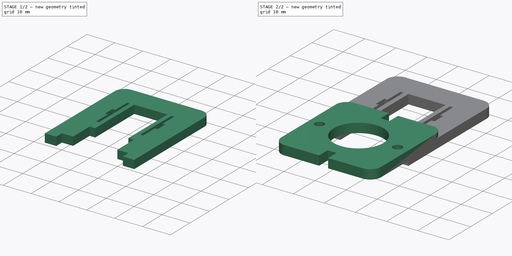
[diagram: build sequence overview — one tinted view per stage of 2, left to right]
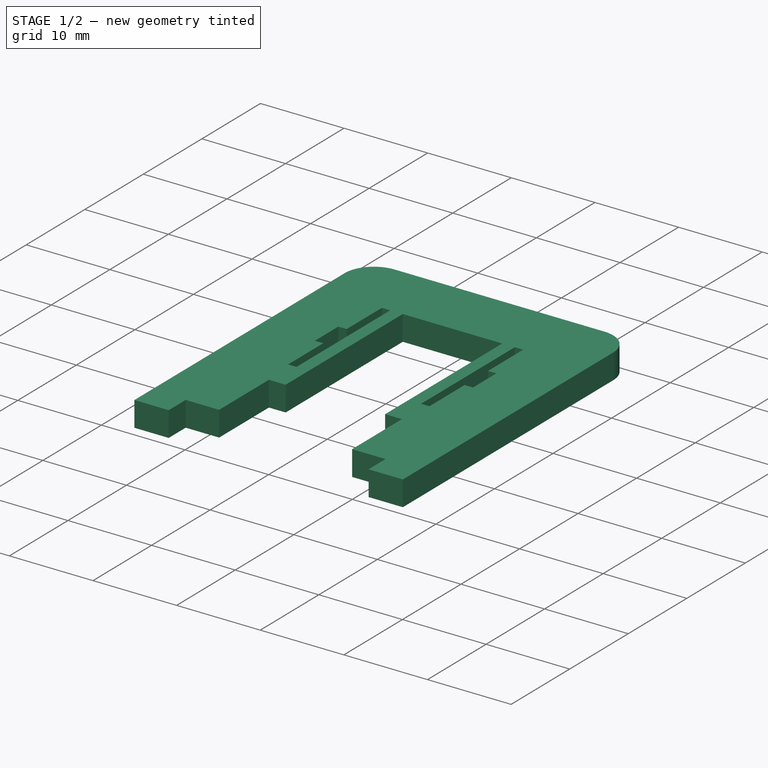
[diagram: stage 1 of 2 — iso view after this stage's code; geometry added in this stage tinted green]
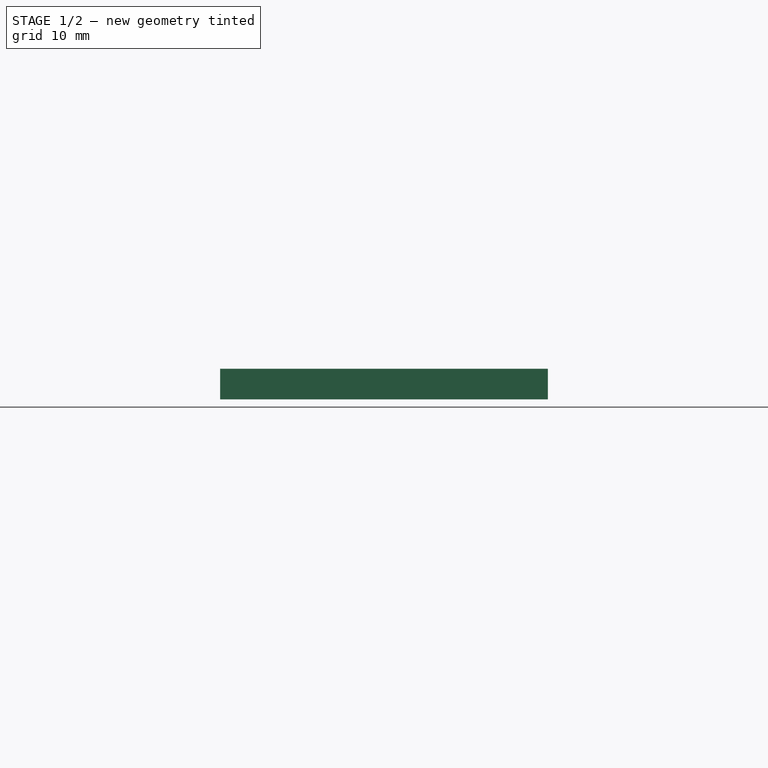
[diagram: stage 1 of 2 — front view after this stage's code; geometry added in this stage tinted green]
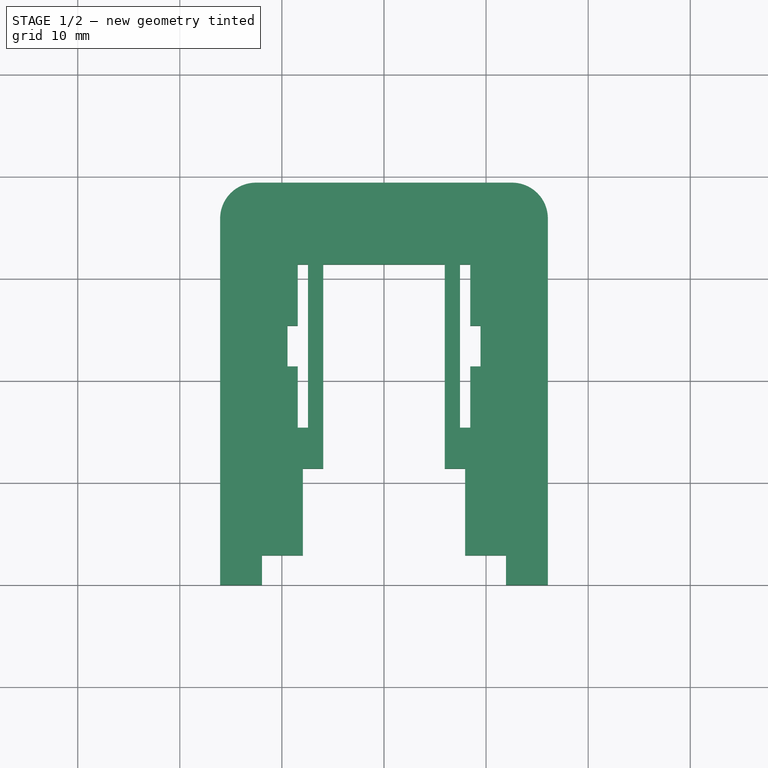
[diagram: stage 1 of 2 — top view after this stage's code; geometry added in this stage tinted green]
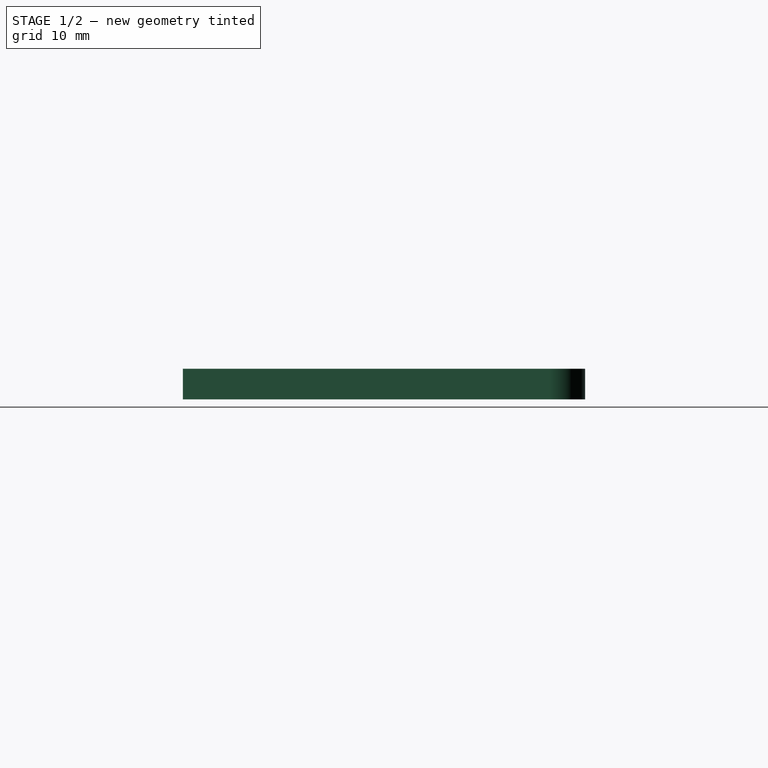
[diagram: stage 1 of 2 — right view after this stage's code; geometry added in this stage tinted green]
FCSTD DOCUMENT  (FreeCAD 0.19R24291 (Git))
Label: ri_motor-mount
License: All rights reserved
LicenseURL: http://en.wikipedia.org/wiki/All_rights_reserved
objects: Sketcher::SketchObject×2, PartDesign::Pad×2, PartDesign::Body×2, App::Part×2, Spreadsheet::Sheet×1
note: 8 computed .brp shape members not serialized (recipe doc carries the construction recipe); baked Part::Feature solids carry a one-line shape summary decoded from their .brp

FEATURE [PartDesign::Body] Body
  Group = -> [Sketch,Pad]
  Origin = -> Origin001
  Tip = -> Pad
FEATURE [App::Part] Part  label="Baseplate"
  Group = -> [Body]
  Origin = -> Origin
FEATURE [Sketcher::SketchObject] Sketch002
  FullyConstrained = true
  MapMode = 5
  Support = -> [XY_Plane005]
  expr: Constraints[38] = 31.5 - Spreadsheet.Offset
  expr: Constraints[44] = 32 + Spreadsheet.Offset
  expr: Constraints[33] = 12 - Spreadsheet.Offset
  expr: Constraints[34] = 16 - Spreadsheet.Offset
  expr: Constraints[36] = 3 - Spreadsheet.Offset
  expr: Constraints[37] = 11.5 - Spreadsheet.Offset
  expr: Constraints[35] = 4 + Spreadsheet.Offset
  sketch-geometry (34):
    g0: LineSegment StartX=-16.05 StartY=0 StartZ=0 EndX=-11.95 EndY=0 EndZ=0
    g1: LineSegment StartX=16.05 StartY=0 StartZ=0 EndX=16.05 EndY=35.9 EndZ=0
    g2: LineSegment StartX=12.55 StartY=39.4 StartZ=0 EndX=-12.55 EndY=39.4 EndZ=0
    g3: LineSegment StartX=-16.05 StartY=35.9 StartZ=0 EndX=-16.05 EndY=0 EndZ=0
    g4: LineSegment StartX=11.95 StartY=0 StartZ=0 EndX=11.95 EndY=2.9 EndZ=0
    g5: LineSegment StartX=11.95 StartY=2.9 StartZ=0 EndX=7.95 EndY=2.9 EndZ=0
    g6: LineSegment StartX=-11.95 StartY=2.9 StartZ=0 EndX=-11.95 EndY=0 EndZ=0
    g7: LineSegment StartX=11.95 StartY=0 StartZ=0 EndX=16.05 EndY=0 EndZ=0
    g8: LineSegment StartX=7.95 StartY=2.9 StartZ=0 EndX=7.95 EndY=11.4 EndZ=0
    g9: LineSegment StartX=7.95 StartY=11.4 StartZ=0 EndX=5.95 EndY=11.4 EndZ=0
    g10: LineSegment StartX=-7.95 StartY=11.4 StartZ=0 EndX=-7.95 EndY=2.9 EndZ=0
    g11: LineSegment StartX=5.95 StartY=11.4 StartZ=0 EndX=5.95 EndY=31.4 EndZ=0
    g12: LineSegment StartX=5.95 StartY=31.4 StartZ=0 EndX=-5.95 EndY=31.4 EndZ=0
    g13: LineSegment StartX=-5.95 StartY=31.4 StartZ=0 EndX=-5.95 EndY=11.4 EndZ=0
    g14: LineSegment StartX=-5.95 StartY=11.4 StartZ=0 EndX=-7.95 EndY=11.4 EndZ=0
    g15: LineSegment StartX=-7.95 StartY=2.9 StartZ=0 EndX=-11.95 EndY=2.9 EndZ=0
    g16: ArcOfCircle CenterX=12.55 CenterY=35.9 CenterZ=0 NormalX=0 NormalY=0 NormalZ=1 AngleXU=0 Radius=3.5 StartAngle=3e-16 EndAngle=1.5708
    g17: ArcOfCircle CenterX=-12.55 CenterY=35.9 CenterZ=0 NormalX=0 NormalY=0 NormalZ=1 AngleXU=0 Radius=3.5 StartAngle=1.5708 EndAngle=3.14159
    g18: LineSegment StartX=-8.45 StartY=31.4 StartZ=0 EndX=-7.45 EndY=31.4 EndZ=0
    g19: LineSegment StartX=-7.45 StartY=31.4 StartZ=0 EndX=-7.45 EndY=15.4 EndZ=0
    g20: LineSegment StartX=-7.45 StartY=15.4 StartZ=0 EndX=-8.45 EndY=15.4 EndZ=0
    g21: LineSegment StartX=-8.45 StartY=15.4 StartZ=0 EndX=-8.45 EndY=21.4 EndZ=0
    g22: LineSegment StartX=7.45 StartY=31.4 StartZ=0 EndX=8.45 EndY=31.4 EndZ=0
    g23: LineSegment StartX=8.45 StartY=31.4 StartZ=0 EndX=8.45 EndY=25.4 EndZ=0
    g24: LineSegment StartX=8.45 StartY=15.4 StartZ=0 EndX=7.45 EndY=15.4 EndZ=0
    g25: LineSegment StartX=7.45 StartY=15.4 StartZ=0 EndX=7.45 EndY=31.4 EndZ=0
    g26: LineSegment StartX=-9.45 StartY=25.4 StartZ=0 EndX=-8.45 EndY=25.4 EndZ=0
    g27: LineSegment StartX=-8.45 StartY=21.4 StartZ=0 EndX=-9.45 EndY=21.4 EndZ=0
    g28: LineSegment StartX=-9.45 StartY=21.4 StartZ=0 EndX=-9.45 EndY=25.4 EndZ=0
    g29: LineSegment StartX=8.45 StartY=25.4 StartZ=0 EndX=9.45 EndY=25.4 EndZ=0
    g30: LineSegment StartX=9.45 StartY=25.4 StartZ=0 EndX=9.45 EndY=21.4 EndZ=0
    g31: LineSegment StartX=9.45 StartY=21.4 StartZ=0 EndX=8.45 EndY=21.4 EndZ=0
    g32: LineSegment StartX=-8.45 StartY=25.4 StartZ=0 EndX=-8.45 EndY=31.4 EndZ=0
    g33: LineSegment StartX=8.45 StartY=21.4 StartZ=0 EndX=8.45 EndY=15.4 EndZ=0
  constraints (89):
    c: Coincident(g7,g1)
    c: Coincident(g3,g0)
    c: Horizontal(g0)
    c: Horizontal(g2)
    c: Vertical(g1)
    c: Vertical(g3)
    c: Coincident(g4,g5)
    c: Coincident(g15,g6)
    c: Horizontal(g5)
    c: Vertical(g4)
    c: Vertical(g6)
    c: Coincident(g0,g6)
    c: Coincident(g7,g4)
    c: Tangent(g0,g7)
    c: Coincident(g8,g9)
    c: Coincident(g14,g10)
    c: Horizontal(g9)
    c: Vertical(g8)
    c: Vertical(g10)
    c: Coincident(g11,g12)
    c: Coincident(g12,g13)
    c: Horizontal(g12)
    c: Vertical(g11)
    c: Vertical(g13)
    c: Coincident(g9,g11)
    c: Coincident(g14,g13)
    c: Tangent(g9,g14)
    c: Tangent(g5,g15)
    c: Coincident(g10,g15)
    c: Coincident(g8,g5)
    c: Equal(g0,g7)
    c: Equal(g15,g5)
    c: Equal(g14,g9)
    c: DistanceX(g12,g12) = 11.9
    c: DistanceX(g10,g8) = 15.9
    c: DistanceX(g0,g0) = 4.1
    c: DistanceY(g4,g4) = 2.9
    c: DistanceY(g1,g8) = 11.4
    c: DistanceY(g1,g11) = 31.4
    c: Tangent(g2,g16) = -1.5708
    c: Tangent(g1,g16) = -1.5708
    c: Tangent(g2,g17) = -1.5708
    c: Tangent(g3,g17) = -1.5708
    c: Equal(g17,g16)
    c: DistanceX(g0,g1) = 32.1
    c: Symmetric(g0,g1,g-1)
    c: Radius(g16) = 3.5
    c: DistanceY(g11,g2) = 8
    c: Coincident(g18,g19)
    c: Coincident(g19,g20)
    c: Coincident(g20,g21)
    c: Coincident(g32,g18)
    c: Horizontal(g20)
    c: Vertical(g19)
    c: Vertical(g21)
    c: Coincident(g22,g23)
    c: Coincident(g33,g24)
    c: Coincident(g24,g25)
    c: Coincident(g25,g22)
    c: Vertical(g23)
    c: Vertical(g25)
    c: Tangent(g18,g12)
    c: Tangent(g22,g12)
    c: Tangent(g20,g24)
    c: DistanceY(g20,g18) = 16
    c: DistanceX(g18,g12) = 1.5
    c: Coincident(g27,g28)
    c: Coincident(g28,g26)
    c: Horizontal(g26)
    c: Horizontal(g27)
    c: Vertical(g28)
    c: Coincident(g29,g30)
    c: Coincident(g30,g31)
    c: Vertical(g30)
    c: Tangent(g21,g32)
    c: Coincident(g26,g32)
    c: Coincident(g27,g21)
    c: Tangent(g23,g33)
    c: Coincident(g29,g23)
    c: Coincident(g31,g33)
    c: Equal(g26,g29)
    c: Tangent(g26,g29)
    c: Tangent(g27,g31)
    c: DistanceY(g28,g28) = 4
    c: Equal(g32,g21)
    c: DistanceX(g26,g26) = 1
    c: DistanceX(g18,g18) = 1
    c: DistanceX(g11,g22) = 1.5
    c: Equal(g18,g22)
FEATURE [PartDesign::Pad] Pad001
  Direction = (1,1,1)
  Length = 1.5
  Length2 = 1.5
  Profile = -> Sketch002
  Refine = true
  Type = 4
FEATURE [PartDesign::Body] Body002
  Group = -> [Sketch002,Pad001]
  Origin = -> Origin005
  Tip = -> Pad001
FEATURE [App::Part] Part002  label="Bracket"
  Group = -> [Body002]
  Origin = -> Origin004
FEATURE [Spreadsheet::Sheet] Spreadsheet
  cells = A1=Laser Offset; B1(Offset)=0.1
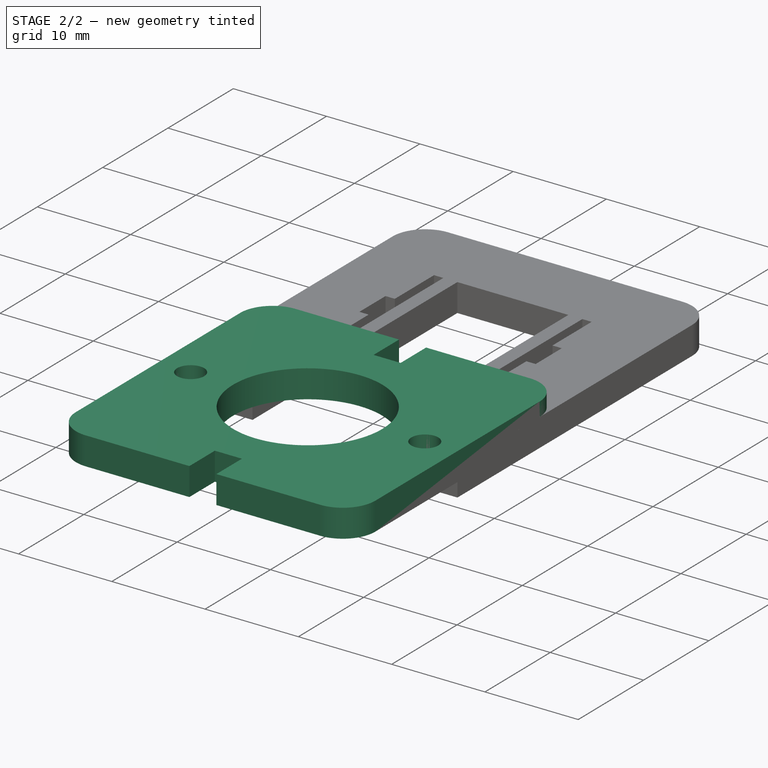
[diagram: stage 2 of 2 — iso view after this stage's code; geometry added in this stage tinted green]
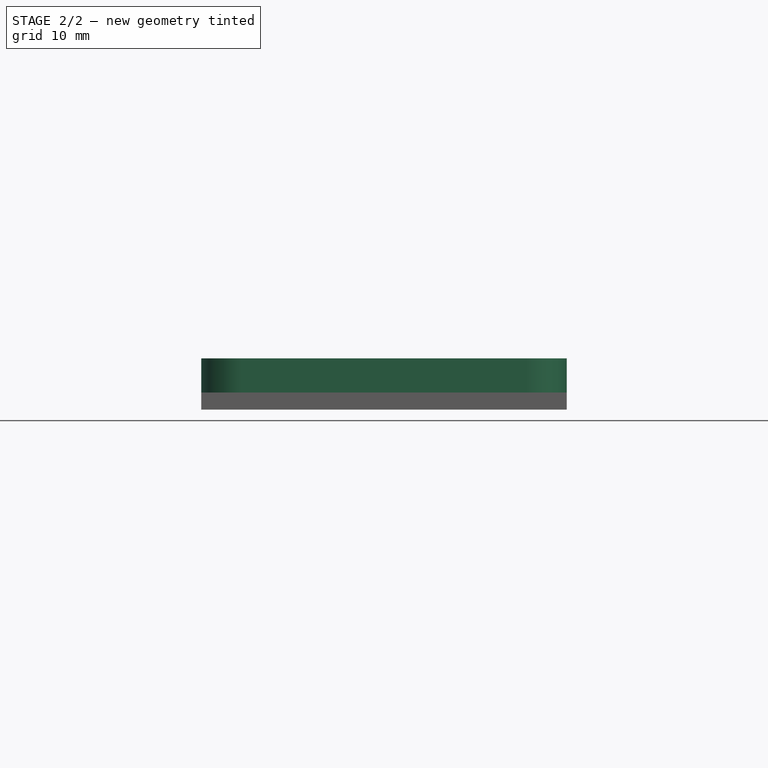
[diagram: stage 2 of 2 — front view after this stage's code; geometry added in this stage tinted green]
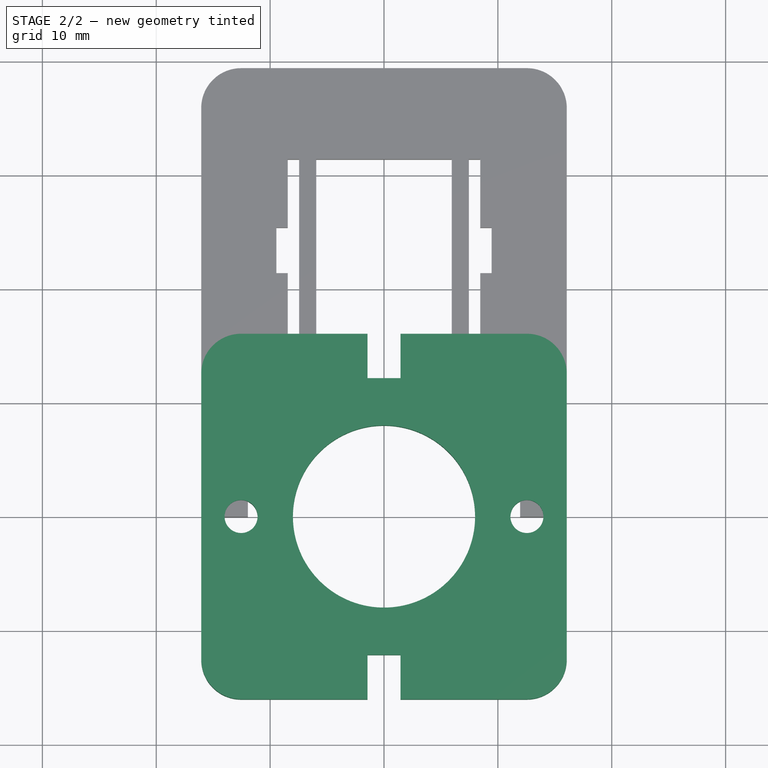
[diagram: stage 2 of 2 — top view after this stage's code; geometry added in this stage tinted green]
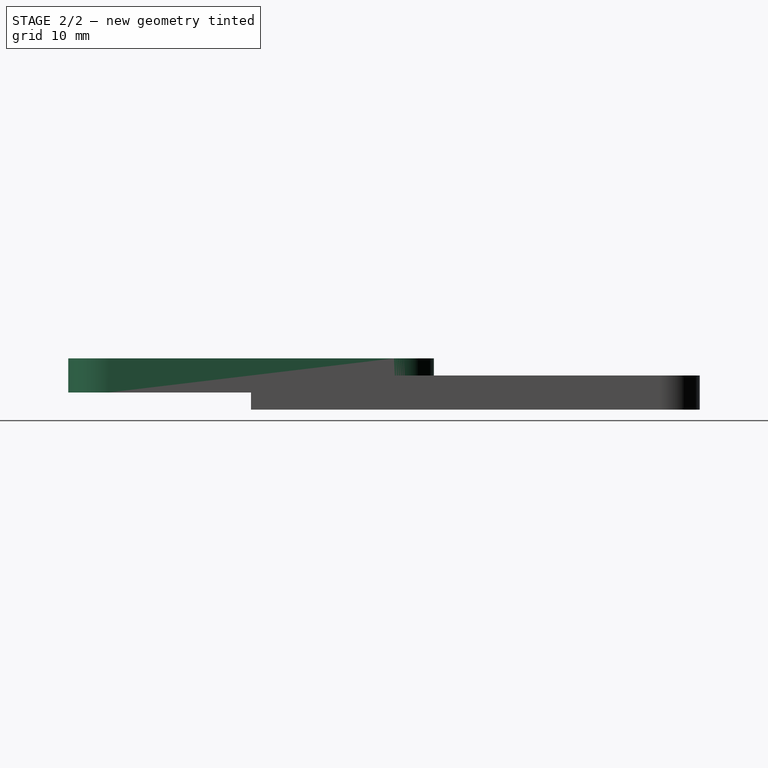
[diagram: stage 2 of 2 — right view after this stage's code; geometry added in this stage tinted green]
FEATURE [Sketcher::SketchObject] Sketch
  FullyConstrained = true
  MapMode = 5
  Support = -> [XY_Plane001]
  expr: Constraints[13] = 25 + Spreadsheet.Offset
  expr: Constraints[14] = 25 + Spreadsheet.Offset
  expr: Constraints[17] = 16.1 - Spreadsheet.Offset
  expr: Constraints[39] = 3 - Spreadsheet.Offset
  expr: Constraints[36] = 4 - Spreadsheet.Offset
  expr: Constraints[35] = 3 - Spreadsheet.Offset
  sketch-geometry (19):
    g0: LineSegment StartX=-12.55 StartY=16.05 StartZ=0 EndX=-1.45 EndY=16.05 EndZ=0
    g1: LineSegment StartX=16.05 StartY=12.55 StartZ=0 EndX=16.05 EndY=-12.55 EndZ=0
    g2: LineSegment StartX=12.55 StartY=-16.05 StartZ=0 EndX=1.45 EndY=-16.05 EndZ=0
    g3: LineSegment StartX=-16.05 StartY=-12.55 StartZ=0 EndX=-16.05 EndY=12.55 EndZ=0
    g4: ArcOfCircle CenterX=12.55 CenterY=12.55 CenterZ=0 NormalX=0 NormalY=0 NormalZ=1 AngleXU=0 Radius=3.5 StartAngle=0 EndAngle=1.5708
    g5: ArcOfCircle CenterX=12.55 CenterY=-12.55 CenterZ=0 NormalX=0 NormalY=0 NormalZ=1 AngleXU=0 Radius=3.5 StartAngle=4.71239 EndAngle=6.28319
    g6: ArcOfCircle CenterX=-12.55 CenterY=-12.55 CenterZ=0 NormalX=0 NormalY=0 NormalZ=1 AngleXU=0 Radius=3.5 StartAngle=3.14159 EndAngle=4.71239
    g7: ArcOfCircle CenterX=-12.55 CenterY=12.55 CenterZ=0 NormalX=0 NormalY=0 NormalZ=1 AngleXU=0 Radius=3.5 StartAngle=1.5708 EndAngle=3.14159
    g8: Circle CenterX=0 CenterY=0 CenterZ=0 NormalX=0 NormalY=0 NormalZ=1 AngleXU=0 Radius=8
    g9: LineSegment StartX=1.45 StartY=16.05 StartZ=0 EndX=1.45 EndY=12.15 EndZ=0
    g10: LineSegment StartX=-1.45 StartY=12.15 StartZ=0 EndX=-1.45 EndY=16.05 EndZ=0
    g11: LineSegment StartX=1.45 StartY=-16.05 StartZ=0 EndX=1.45 EndY=-12.15 EndZ=0
    g12: LineSegment StartX=1.45 StartY=-12.15 StartZ=0 EndX=-1.45 EndY=-12.15 EndZ=0
    g13: LineSegment StartX=-1.45 StartY=-12.15 StartZ=0 EndX=-1.45 EndY=-16.05 EndZ=0
    g14: LineSegment StartX=1.45 StartY=16.05 StartZ=0 EndX=12.55 EndY=16.05 EndZ=0
    g15: LineSegment StartX=-1.45 StartY=-16.05 StartZ=0 EndX=-12.55 EndY=-16.05 EndZ=0
    g16: Circle CenterX=-12.55 CenterY=-4e-16 CenterZ=0 NormalX=0 NormalY=0 NormalZ=1 AngleXU=0 Radius=1.45
    g17: Circle CenterX=12.55 CenterY=-4e-16 CenterZ=0 NormalX=0 NormalY=0 NormalZ=1 AngleXU=0 Radius=1.45
    g18: LineSegment StartX=-1.45 StartY=12.15 StartZ=0 EndX=1.45 EndY=12.15 EndZ=0
  constraints (49):
    c: Horizontal(g0)
    c: Horizontal(g2)
    c: Vertical(g1)
    c: Vertical(g3)
    c: Coincident(g14,g4) = 1.5708
    c: Tangent(g1,g4) = 1.5708
    c: Tangent(g1,g5) = 1.5708
    c: Tangent(g2,g5) = 1.5708
    c: Coincident(g15,g6) = 1.5708
    c: Tangent(g3,g6) = 1.5708
    c: Tangent(g3,g7) = 1.5708
    c: Tangent(g0,g7) = 1.5708
    c: Coincident(g8,g-1)
    c: DistanceX(g7,g4) = 25.1
    c: DistanceY(g5,g4) = 25.1
    c: Radius(g4) = 3.5
    c: Symmetric(g6,g4,g8)
    c: Diameter(g8) = 16
    c: Vertical(g9)
    c: Vertical(g10)
    c: Coincident(g11,g12)
    c: Coincident(g12,g13)
    c: Horizontal(g12)
    c: Vertical(g11)
    c: Vertical(g13)
    c: Tangent(g0,g14)
    c: Coincident(g10,g0)
    c: Coincident(g9,g14)
    c: Tangent(g2,g15)
    c: Coincident(g13,g15)
    c: Coincident(g11,g2)
    c: Equal(g0,g14)
    c: Equal(g0,g15)
    c: Equal(g15,g2)
    c: Equal(g10,g13)
    c: DistanceX(g0,g9) = 2.9
    c: DistanceY(g9,g9) = 3.9
    c: Equal(g4,g7)
    c: Equal(g16,g17)
    c: Diameter(g16) = 2.9
    c: Symmetric(g7,g6,g16)
    c: Symmetric(g4,g5,g17)
    c: Coincident(g18,g10)
    c: Coincident(g18,g9)
    c: Horizontal(g18)
    c: Horizontal(g7,g4)
    c: Vertical(g7,g6)
    c: Vertical(g4,g5)
    c: Horizontal(g16,g17)
FEATURE [PartDesign::Pad] Pad
  Direction = (1,1,1)
  Length = 3
  Length2 = 100
  Profile = -> Sketch
  Refine = true
  Type = 0
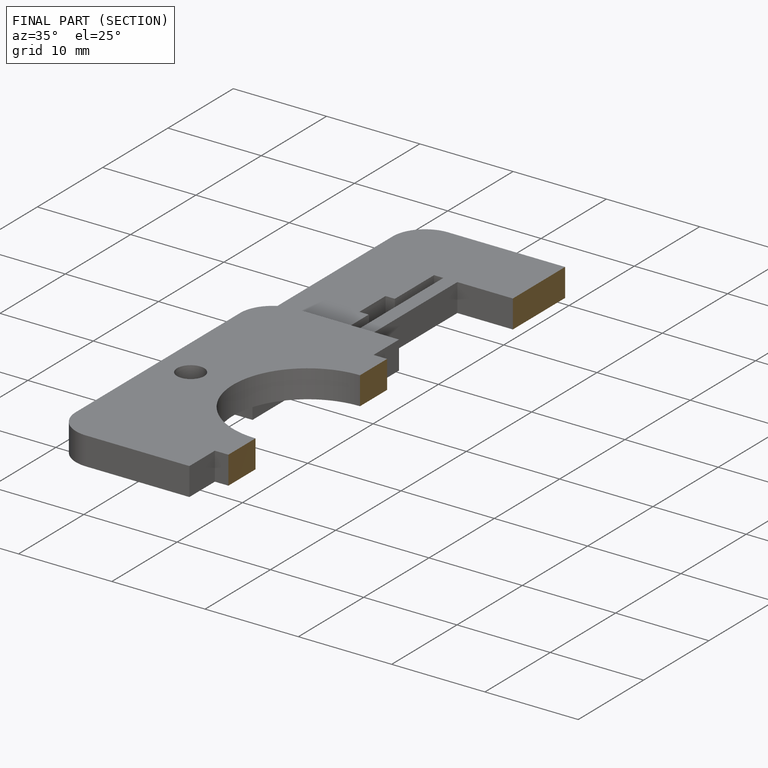
[diagram: finished part — half-section view (interior)]
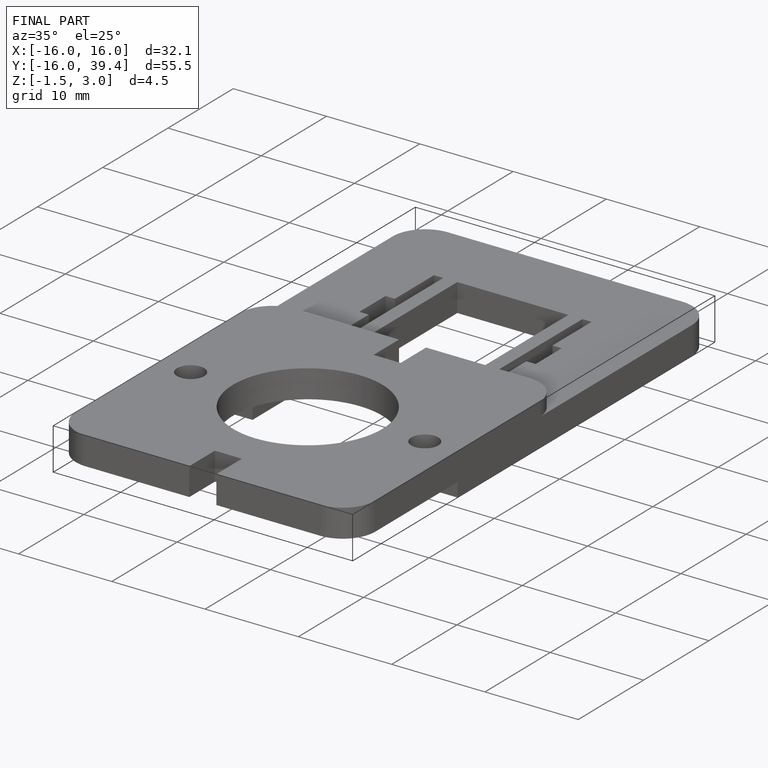
[diagram: finished part — iso view with bounding-box wireframe]
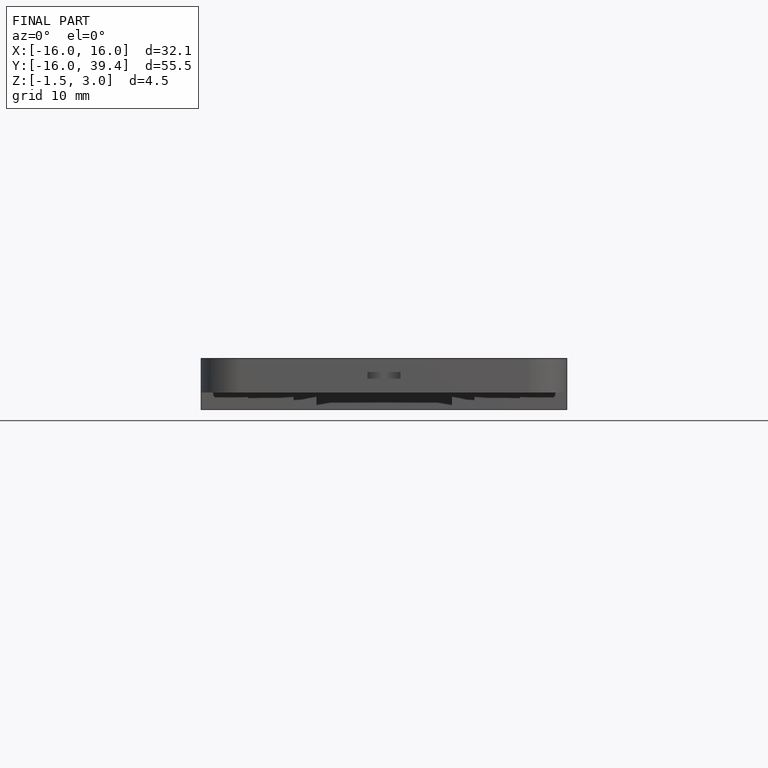
[diagram: finished part — front view with bounding-box wireframe]
